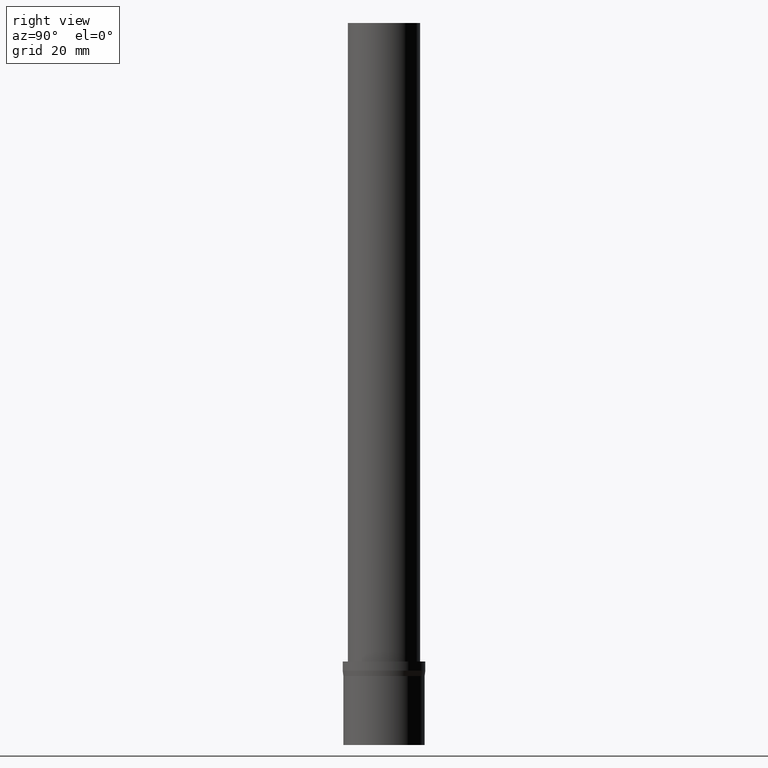
[diagram: clean part render]
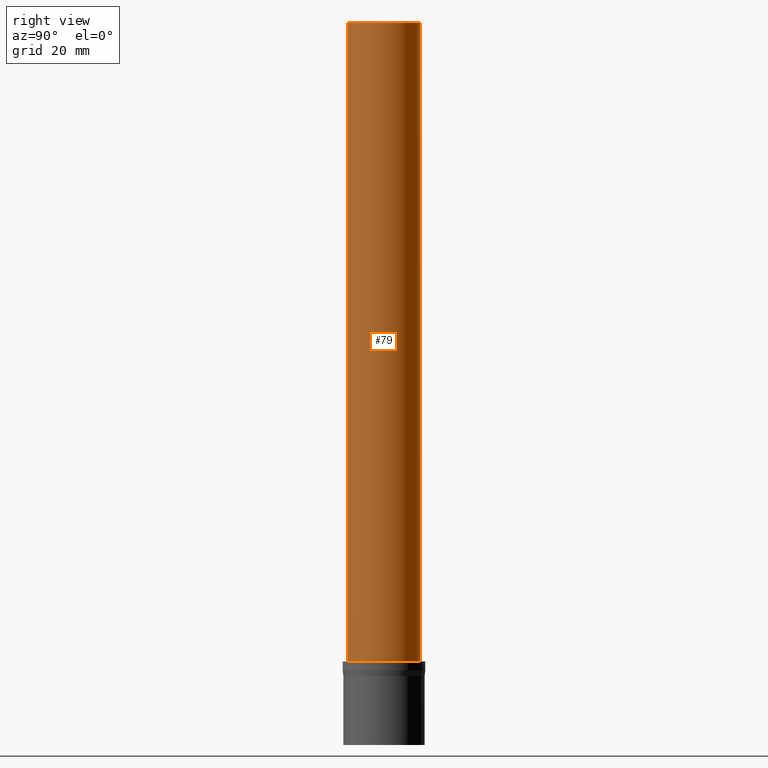
[diagram: same view with one face highlighted and labeled with its STEP entity id]
A machine part, right view. The second image highlights one B-rep face of the part: STEP entity #79.
In plain terms, the highlighted cylindrical surface (bore or boss wall) has radius 8 mm, axis along (-0, -0, 1).
Its self-contained STEP definition (entity closure, byte-faithful):
#79=ADVANCED_FACE('',(#93,#94),#95,.T.);
#93=FACE_BOUND('',#112,.T.);
#94=FACE_BOUND('',#113,.T.);
#95=CYLINDRICAL_SURFACE('',#114,8.0);
#112=EDGE_LOOP('',(#139));
#113=EDGE_LOOP('',(#140));
#114=AXIS2_PLACEMENT_3D('',#141,#142,#143);
#139=ORIENTED_EDGE('',*,*,#158,.F.);
#140=ORIENTED_EDGE('',*,*,#157,.T.);
#141=CARTESIAN_POINT('',(-5.46498634119507E-015,-1.09299726823901E-014,89.2500000000001));
#142=DIRECTION('',(-6.12323399573677E-017,-1.22464679914735E-016,1.0));
#143=DIRECTION('',(-1.23259516440783E-032,1.0,1.22464679914735E-016));
#157=EDGE_CURVE('',#166,#166,#167,.T.);
#158=EDGE_CURVE('',#168,#168,#169,.T.);
#166=VERTEX_POINT('',#178);
#167=CIRCLE('',#179,7.99999999999996);
#168=VERTEX_POINT('',#180);
#169=CIRCLE('',#181,8.00000000000003);
#178=CARTESIAN_POINT('',(-9.79717439317883E-015,7.99999999999994,160.0));
#179=AXIS2_PLACEMENT_3D('',#193,#194,#195);
#180=CARTESIAN_POINT('',(-1.13279828921131E-015,8.00000000000003,18.5000000000001));
#181=AXIS2_PLACEMENT_3D('',#196,#197,#198);
#193=CARTESIAN_POINT('',(-9.79717439317883E-015,-1.95943487863577E-014,160.0));
#194=DIRECTION('',(6.12323399573676E-017,1.22464679914735E-016,-1.0));
#195=DIRECTION('',(-1.23259516440783E-032,1.0,1.22464679914735E-016));
#196=CARTESIAN_POINT('',(-1.13279828921131E-015,-2.26559657842261E-015,18.5000000000001));
#197=DIRECTION('',(6.12323399573677E-017,1.22464679914735E-016,-1.0));
#198=DIRECTION('',(-1.23259516440783E-032,1.0,1.22464679914735E-016));